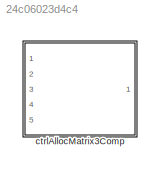
MODEL slx_24c06023d4c4
KIND library
CONFIG AbsTol = auto
CONFIG EnableMultiTasking = off
CONFIG FixedStep = auto
CONFIG MaxStep = auto
CONFIG MinStep = auto
CONFIG RelTol = 1e-3
CONFIG SampleTimeConstraint = Unconstrained
CONFIG SolverName = VariableStepAuto
CONFIG StartTime = 0.0
CONFIG StopTime = 10.0
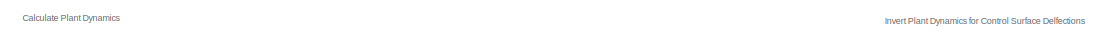
[diagram: ctrlAllocMatrix3Comp - part 1/2, top center region]
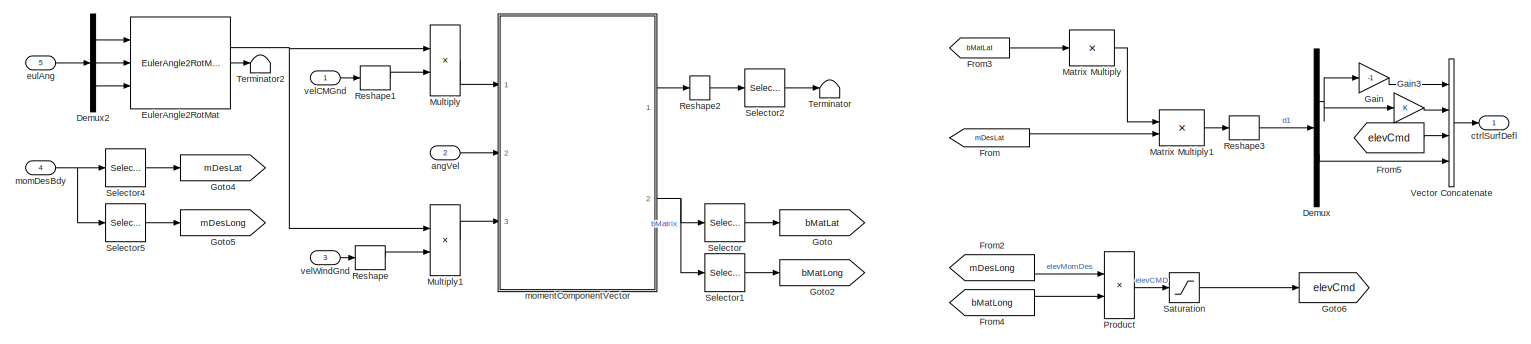
[diagram: ctrlAllocMatrix3Comp - part 2/2, most of the canvas]
BLOCK [SubSystem] ctrlAllocMatrix3Comp
  MinAlgLoopOccurrences = on
  Ports = [5, 1]
  RequestExecContextInheritance = off
BLOCK [Demux] ctrlAllocMatrix3Comp/Demux
  Outputs = 2
  Ports = [1, 2]
BLOCK [Demux] ctrlAllocMatrix3Comp/Demux2
  Outputs = 3
  Ports = [1, 3]
BLOCK [Reference] ctrlAllocMatrix3Comp/EulerAngle2RotMat  REF=eulAng2RotMat_ul/EulerAngle2RotMat
  Ports = [3, 2]
  SourceBlock = eulAng2RotMat_ul/EulerAngle2RotMat
  SourceType = SubSystem
BLOCK [From] ctrlAllocMatrix3Comp/From
  GotoTag = mDesLat
BLOCK [From] ctrlAllocMatrix3Comp/From2
  GotoTag = mDesLong
BLOCK [From] ctrlAllocMatrix3Comp/From3
  GotoTag = bMatLat
BLOCK [From] ctrlAllocMatrix3Comp/From4
  GotoTag = bMatLong
BLOCK [From] ctrlAllocMatrix3Comp/From5
  GotoTag = elevCmd
BLOCK [Gain] ctrlAllocMatrix3Comp/Gain
  Gain = -1
BLOCK [Gain] ctrlAllocMatrix3Comp/Gain3
BLOCK [Goto] ctrlAllocMatrix3Comp/Goto
  GotoTag = bMatLat
BLOCK [Goto] ctrlAllocMatrix3Comp/Goto2
  GotoTag = bMatLong
BLOCK [Goto] ctrlAllocMatrix3Comp/Goto4
  GotoTag = mDesLat
BLOCK [Goto] ctrlAllocMatrix3Comp/Goto5
  GotoTag = mDesLong
BLOCK [Goto] ctrlAllocMatrix3Comp/Goto6
  GotoTag = elevCmd
BLOCK [Product] ctrlAllocMatrix3Comp/Matrix Multiply
  Inputs = /
  Multiplication = Matrix(*)
  Ports = [1, 1]
BLOCK [Product] ctrlAllocMatrix3Comp/Matrix Multiply1
  Multiplication = Matrix(*)
  Ports = [2, 1]
BLOCK [Product] ctrlAllocMatrix3Comp/Multiply
  Multiplication = Matrix(*)
  Ports = [2, 1]
BLOCK [Product] ctrlAllocMatrix3Comp/Multiply1
  Multiplication = Matrix(*)
  Ports = [2, 1]
BLOCK [Product] ctrlAllocMatrix3Comp/Product
  Inputs = */
  Ports = [2, 1]
BLOCK [Reshape] ctrlAllocMatrix3Comp/Reshape
  OutputDimensionality = Column vector (2-D)
  Ports = [1, 1]
BLOCK [Reshape] ctrlAllocMatrix3Comp/Reshape1
  OutputDimensionality = Column vector (2-D)
  Ports = [1, 1]
BLOCK [Reshape] ctrlAllocMatrix3Comp/Reshape2
  OutputDimensionality = Column vector (2-D)
  Ports = [1, 1]
BLOCK [Reshape] ctrlAllocMatrix3Comp/Reshape3
  Ports = [1, 1]
BLOCK [Saturate] ctrlAllocMatrix3Comp/Saturation
  LowerLimit = -30
  UpperLimit = 30
BLOCK [Selector] ctrlAllocMatrix3Comp/Selector
  IndexOptions = Index vector (dialog),Index vector (dialog)
  Indices = [1 3],[1 3]
  InputPortWidth = 3
  NumberOfDimensions = 2
  OutputSizes = 1,1
  Ports = [1, 1]
BLOCK [Selector] ctrlAllocMatrix3Comp/Selector1
  IndexOptions = Index vector (dialog),Index vector (dialog)
  Indices = 2,2
  InputPortWidth = 3
  NumberOfDimensions = 2
  OutputSizes = 1,1
  Ports = [1, 1]
BLOCK [Selector] ctrlAllocMatrix3Comp/Selector2
  IndexOptions = Index vector (dialog)
  Indices = [1 3]
  InputPortWidth = 3
  OutputSizes = 1
  Ports = [1, 1]
BLOCK [Selector] ctrlAllocMatrix3Comp/Selector4
  IndexOptions = Index vector (dialog)
  Indices = [1 3]
  InputPortWidth = 3
  OutputSizes = 1
  Ports = [1, 1]
BLOCK [Selector] ctrlAllocMatrix3Comp/Selector5
  IndexOptions = Index vector (dialog)
  Indices = 2
  InputPortWidth = 3
  OutputSizes = 1
  Ports = [1, 1]
BLOCK [Terminator] ctrlAllocMatrix3Comp/Terminator
BLOCK [Terminator] ctrlAllocMatrix3Comp/Terminator2
BLOCK [Concatenate] ctrlAllocMatrix3Comp/Vector Concatenate
  NumInputs = 4
  Ports = [4, 1]
BLOCK [Inport] ctrlAllocMatrix3Comp/angVel
  Port = 2
BLOCK [Outport] ctrlAllocMatrix3Comp/ctrlSurfDefl
  VectorParamsAs1DForOutWhenUnconnected = off
BLOCK [Inport] ctrlAllocMatrix3Comp/eulAng
  Port = 5
BLOCK [Inport] ctrlAllocMatrix3Comp/momDesBdy
  Port = 4
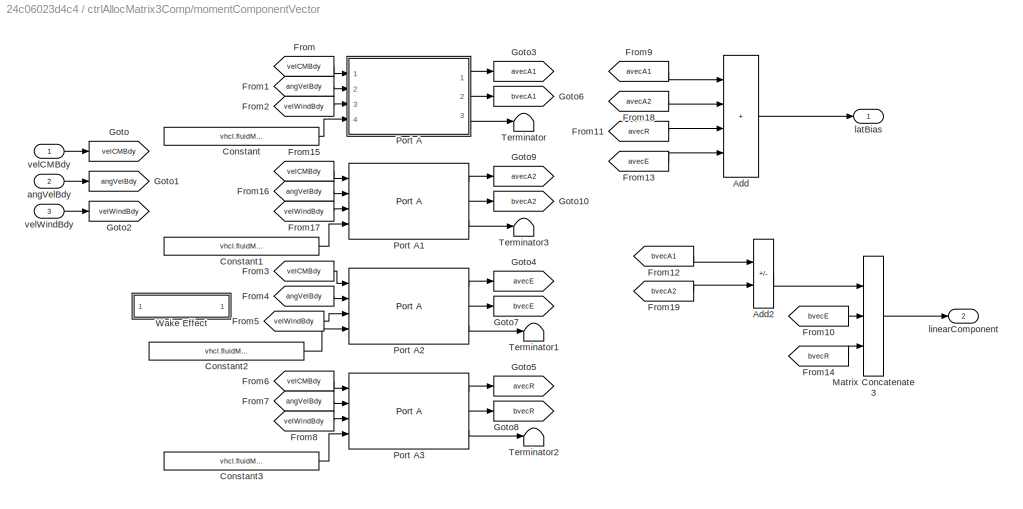
BLOCK [SubSystem] ctrlAllocMatrix3Comp/momentComponentVector
  Ports = [3, 2]
  RequestExecContextInheritance = off
BLOCK [Sum] ctrlAllocMatrix3Comp/momentComponentVector/Add
  IconShape = rectangular
  Inputs = ++++
  Ports = [4, 1]
BLOCK [Sum] ctrlAllocMatrix3Comp/momentComponentVector/Add2
  IconShape = rectangular
  Inputs = -+
  Ports = [2, 1]
BLOCK [Constant] ctrlAllocMatrix3Comp/momentComponentVector/Constant
  Value = vhcl.fluidMomentArms.Value(:,1)
BLOCK [Constant] ctrlAllocMatrix3Comp/momentComponentVector/Constant1
  Value = vhcl.fluidMomentArms.Value(:,2)
BLOCK [Constant] ctrlAllocMatrix3Comp/momentComponentVector/Constant2
  Value = vhcl.fluidMomentArms.Value(:,3)
BLOCK [Constant] ctrlAllocMatrix3Comp/momentComponentVector/Constant3
  Value = vhcl.fluidMomentArms.Value(:,4)
BLOCK [From] ctrlAllocMatrix3Comp/momentComponentVector/From
  GotoTag = velCMBdy
BLOCK [From] ctrlAllocMatrix3Comp/momentComponentVector/From1
  GotoTag = angVelBdy
BLOCK [From] ctrlAllocMatrix3Comp/momentComponentVector/From10
  GotoTag = bvecE
BLOCK [From] ctrlAllocMatrix3Comp/momentComponentVector/From11
  GotoTag = avecR
BLOCK [From] ctrlAllocMatrix3Comp/momentComponentVector/From12
  GotoTag = bvecA1
BLOCK [From] ctrlAllocMatrix3Comp/momentComponentVector/From13
  GotoTag = avecE
BLOCK [From] ctrlAllocMatrix3Comp/momentComponentVector/From14
  GotoTag = bvecR
BLOCK [From] ctrlAllocMatrix3Comp/momentComponentVector/From15
  GotoTag = velCMBdy
BLOCK [From] ctrlAllocMatrix3Comp/momentComponentVector/From16
  GotoTag = angVelBdy
BLOCK [From] ctrlAllocMatrix3Comp/momentComponentVector/From17
  GotoTag = velWindBdy
BLOCK [From] ctrlAllocMatrix3Comp/momentComponentVector/From18
  GotoTag = avecA2
BLOCK [From] ctrlAllocMatrix3Comp/momentComponentVector/From19
  GotoTag = bvecA2
BLOCK [From] ctrlAllocMatrix3Comp/momentComponentVector/From2
  GotoTag = velWindBdy
BLOCK [From] ctrlAllocMatrix3Comp/momentComponentVector/From3
  GotoTag = velCMBdy
BLOCK [From] ctrlAllocMatrix3Comp/momentComponentVector/From4
  GotoTag = angVelBdy
BLOCK [From] ctrlAllocMatrix3Comp/momentComponentVector/From5
  GotoTag = velWindBdy
BLOCK [From] ctrlAllocMatrix3Comp/momentComponentVector/From6
  GotoTag = velCMBdy
BLOCK [From] ctrlAllocMatrix3Comp/momentComponentVector/From7
  GotoTag = angVelBdy
BLOCK [From] ctrlAllocMatrix3Comp/momentComponentVector/From8
  GotoTag = velWindBdy
BLOCK [From] ctrlAllocMatrix3Comp/momentComponentVector/From9
  GotoTag = avecA1
BLOCK [Goto] ctrlAllocMatrix3Comp/momentComponentVector/Goto
  GotoTag = velCMBdy
BLOCK [Goto] ctrlAllocMatrix3Comp/momentComponentVector/Goto1
  GotoTag = angVelBdy
BLOCK [Goto] ctrlAllocMatrix3Comp/momentComponentVector/Goto10
  GotoTag = bvecA2
BLOCK [Goto] ctrlAllocMatrix3Comp/momentComponentVector/Goto2
  GotoTag = velWindBdy
BLOCK [Goto] ctrlAllocMatrix3Comp/momentComponentVector/Goto3
  GotoTag = avecA1
BLOCK [Goto] ctrlAllocMatrix3Comp/momentComponentVector/Goto4
  GotoTag = avecE
BLOCK [Goto] ctrlAllocMatrix3Comp/momentComponentVector/Goto5
  GotoTag = avecR
BLOCK [Goto] ctrlAllocMatrix3Comp/momentComponentVector/Goto6
  GotoTag = bvecA1
BLOCK [Goto] ctrlAllocMatrix3Comp/momentComponentVector/Goto7
  GotoTag = bvecE
BLOCK [Goto] ctrlAllocMatrix3Comp/momentComponentVector/Goto8
  GotoTag = bvecR
BLOCK [Goto] ctrlAllocMatrix3Comp/momentComponentVector/Goto9
  GotoTag = avecA2
BLOCK [Concatenate] ctrlAllocMatrix3Comp/momentComponentVector/Matrix Concatenate3
  ConcatenateDimension = 2
  Mode = Multidimensional array
  NumInputs = 3
  Ports = [3, 1]
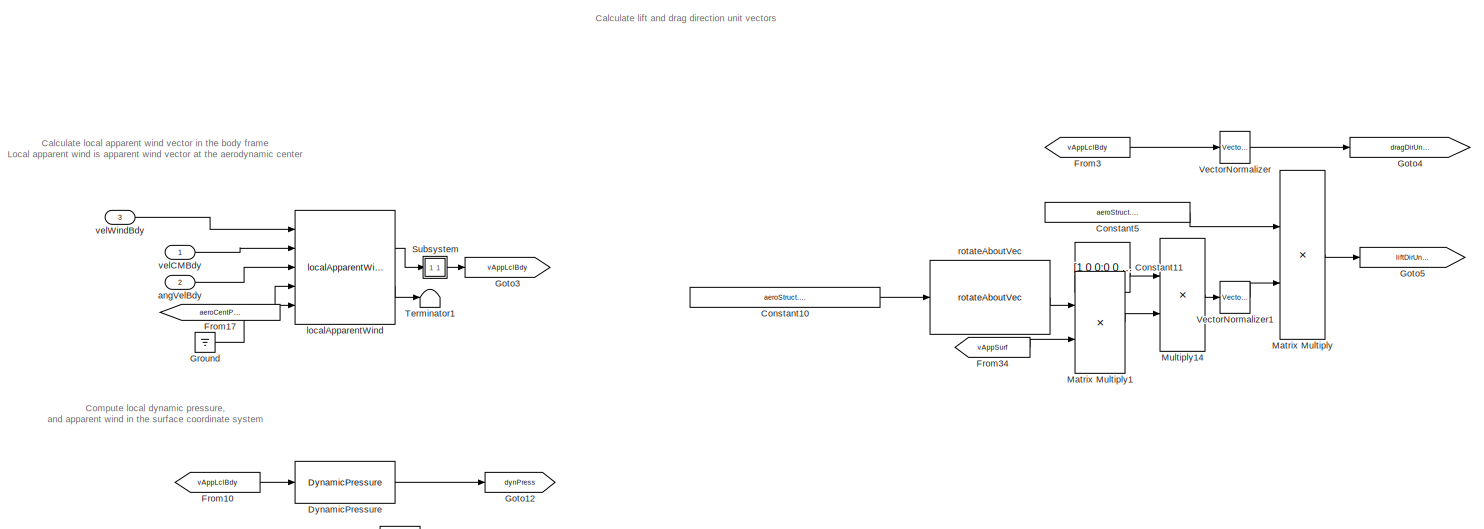
[diagram: ctrlAllocMatrix3Comp/momentComponentVector/Port A - part 1/4, top center region]
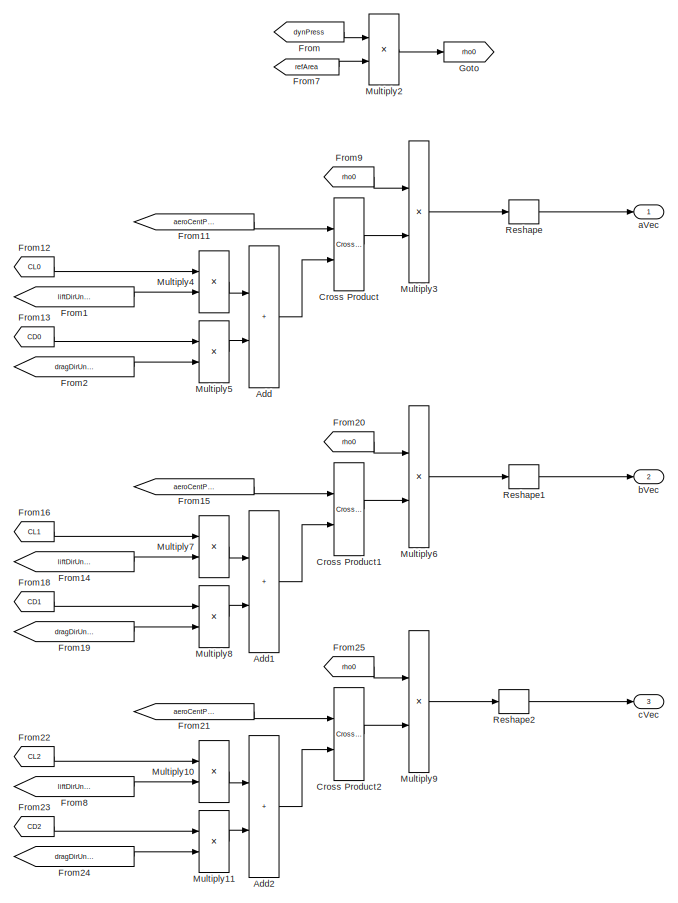
[diagram: ctrlAllocMatrix3Comp/momentComponentVector/Port A - part 2/4, middle right region]
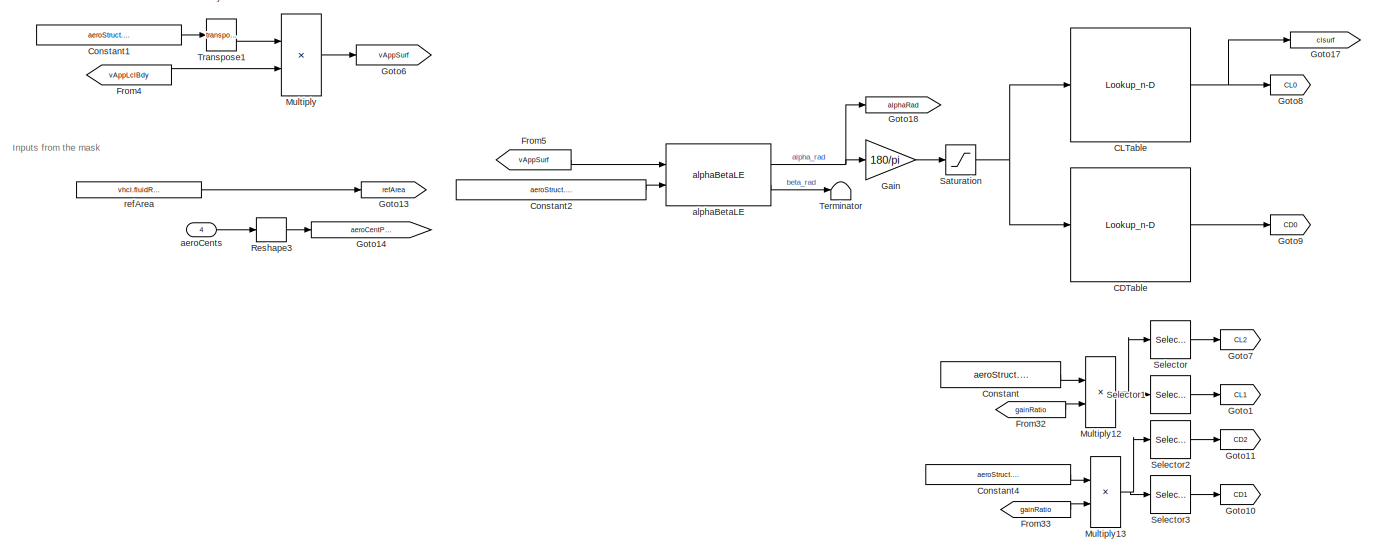
[diagram: ctrlAllocMatrix3Comp/momentComponentVector/Port A - part 3/4, central region]
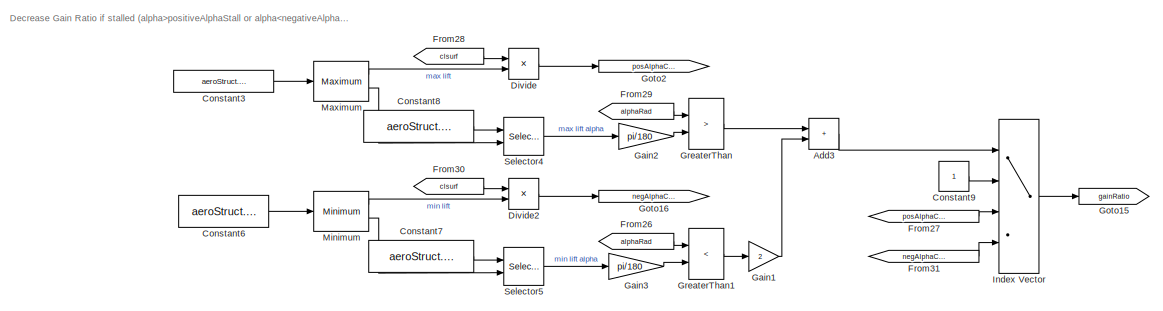
[diagram: ctrlAllocMatrix3Comp/momentComponentVector/Port A - part 4/4, bottom right region]
BLOCK [SubSystem] ctrlAllocMatrix3Comp/momentComponentVector/Port A
  Ports = [4, 3]
  RequestExecContextInheritance = off
BLOCK [Sum] ctrlAllocMatrix3Comp/momentComponentVector/Port A/Add
  IconShape = rectangular
  Ports = [2, 1]
BLOCK [Sum] ctrlAllocMatrix3Comp/momentComponentVector/Port A/Add1
  IconShape = rectangular
  Ports = [2, 1]
BLOCK [Sum] ctrlAllocMatrix3Comp/momentComponentVector/Port A/Add2
  IconShape = rectangular
  Ports = [2, 1]
BLOCK [Sum] ctrlAllocMatrix3Comp/momentComponentVector/Port A/Add3
  IconShape = rectangular
  Ports = [2, 1]
BLOCK [Lookup_n-D] ctrlAllocMatrix3Comp/momentComponentVector/Port A/CDTable
  BreakpointsForDimension1 = aeroStruct.alpha.Value
  ExtrapMethod = Clip
  InputPortMap = u0
  InternalRulePriority = Speed
  LookupTableObject = CLTable
  NumberOfTableDimensions = 1
  Ports = [1, 1]
  RndMeth = Simplest
  Table = aeroStruct.CD.Value
  UseLastTableValue = on
BLOCK [Lookup_n-D] ctrlAllocMatrix3Comp/momentComponentVector/Port A/CLTable
  BreakpointsForDimension1 = aeroStruct.alpha.Value
  ExtrapMethod = Clip
  InputPortMap = u0
  InternalRulePriority = Speed
  LookupTableObject = CLTable
  NumberOfTableDimensions = 1
  Ports = [1, 1]
  RndMeth = Simplest
  Table = aeroStruct.CL.Value
  UseLastTableValue = on
BLOCK [Constant] ctrlAllocMatrix3Comp/momentComponentVector/Port A/Constant
  NameLocation = top
  Value = aeroStruct.gainCL.Value
BLOCK [Constant] ctrlAllocMatrix3Comp/momentComponentVector/Port A/Constant1
  Value = aeroStruct.RSurf2Bdy.Value
BLOCK [Constant] ctrlAllocMatrix3Comp/momentComponentVector/Port A/Constant10
  Value = aeroStruct.incAlphaUnitVecSurf.Value
BLOCK [Constant] ctrlAllocMatrix3Comp/momentComponentVector/Port A/Constant11
  Value = [1 0 0;0 0 0;0 0 1]
BLOCK [Constant] ctrlAllocMatrix3Comp/momentComponentVector/Port A/Constant2
  Value = aeroStruct.incAlphaUnitVecSurf.Value
BLOCK [Constant] ctrlAllocMatrix3Comp/momentComponentVector/Port A/Constant3
  Value = aeroStruct.CL.Value
BLOCK [Constant] ctrlAllocMatrix3Comp/momentComponentVector/Port A/Constant4
  NameLocation = top
  Value = aeroStruct.gainCD.Value
BLOCK [Constant] ctrlAllocMatrix3Comp/momentComponentVector/Port A/Constant5
  Value = aeroStruct.RSurf2Bdy.Value
BLOCK [Constant] ctrlAllocMatrix3Comp/momentComponentVector/Port A/Constant6
  Value = aeroStruct.CL.Value
BLOCK [Constant] ctrlAllocMatrix3Comp/momentComponentVector/Port A/Constant7
  Value = aeroStruct.alpha.Value
BLOCK [Constant] ctrlAllocMatrix3Comp/momentComponentVector/Port A/Constant8
  Value = aeroStruct.alpha.Value
BLOCK [Constant] ctrlAllocMatrix3Comp/momentComponentVector/Port A/Constant9
BLOCK [Reference] ctrlAllocMatrix3Comp/momentComponentVector/Port A/Cross Product  REF=vrlib/Utilities/Cross Product
  Ports = [2, 1]
  SourceBlock = vrlib/Utilities/Cross Product
  SourceProductBaseCode = SL
  SourceType = Cross Product
BLOCK [Reference] ctrlAllocMatrix3Comp/momentComponentVector/Port A/Cross Product1  REF=vrlib/Utilities/Cross Product
  Ports = [2, 1]
  SourceBlock = vrlib/Utilities/Cross Product
  SourceProductBaseCode = SL
  SourceType = Cross Product
BLOCK [Reference] ctrlAllocMatrix3Comp/momentComponentVector/Port A/Cross Product2  REF=vrlib/Utilities/Cross Product
  Ports = [2, 1]
  SourceBlock = vrlib/Utilities/Cross Product
  SourceProductBaseCode = SL
  SourceType = Cross Product
BLOCK [Product] ctrlAllocMatrix3Comp/momentComponentVector/Port A/Divide
  Inputs = */
  Ports = [2, 1]
BLOCK [Product] ctrlAllocMatrix3Comp/momentComponentVector/Port A/Divide2
  Inputs = */
  Ports = [2, 1]
BLOCK [Reference] ctrlAllocMatrix3Comp/momentComponentVector/Port A/DynamicPressure  REF=dynamicPressure_ul/DynamicPressure
  Ports = [1, 1]
  SourceBlock = dynamicPressure_ul/DynamicPressure
BLOCK [From] ctrlAllocMatrix3Comp/momentComponentVector/Port A/From
  GotoTag = dynPress
BLOCK [From] ctrlAllocMatrix3Comp/momentComponentVector/Port A/From1
  GotoTag = liftDirUnitVecBdy
BLOCK [From] ctrlAllocMatrix3Comp/momentComponentVector/Port A/From10
  GotoTag = vAppLclBdy
BLOCK [From] ctrlAllocMatrix3Comp/momentComponentVector/Port A/From11
  GotoTag = aeroCentPosVecBdy
BLOCK [From] ctrlAllocMatrix3Comp/momentComponentVector/Port A/From12
  GotoTag = CL0
BLOCK [From] ctrlAllocMatrix3Comp/momentComponentVector/Port A/From13
  GotoTag = CD0
BLOCK [From] ctrlAllocMatrix3Comp/momentComponentVector/Port A/From14
  GotoTag = liftDirUnitVecBdy
BLOCK [From] ctrlAllocMatrix3Comp/momentComponentVector/Port A/From15
  GotoTag = aeroCentPosVecBdy
BLOCK [From] ctrlAllocMatrix3Comp/momentComponentVector/Port A/From16
  GotoTag = CL1
BLOCK [From] ctrlAllocMatrix3Comp/momentComponentVector/Port A/From17
  GotoTag = aeroCentPosVecBdy
BLOCK [From] ctrlAllocMatrix3Comp/momentComponentVector/Port A/From18
  GotoTag = CD1
BLOCK [From] ctrlAllocMatrix3Comp/momentComponentVector/Port A/From19
  GotoTag = dragDirUnitVecBdy
BLOCK [From] ctrlAllocMatrix3Comp/momentComponentVector/Port A/From2
  GotoTag = dragDirUnitVecBdy
BLOCK [From] ctrlAllocMatrix3Comp/momentComponentVector/Port A/From20
  GotoTag = rho0
BLOCK [From] ctrlAllocMatrix3Comp/momentComponentVector/Port A/From21
  GotoTag = aeroCentPosVecBdy
BLOCK [From] ctrlAllocMatrix3Comp/momentComponentVector/Port A/From22
  GotoTag = CL2
BLOCK [From] ctrlAllocMatrix3Comp/momentComponentVector/Port A/From23
  GotoTag = CD2
BLOCK [From] ctrlAllocMatrix3Comp/momentComponentVector/Port A/From24
  GotoTag = dragDirUnitVecBdy
BLOCK [From] ctrlAllocMatrix3Comp/momentComponentVector/Port A/From25
  GotoTag = rho0
BLOCK [From] ctrlAllocMatrix3Comp/momentComponentVector/Port A/From26
  GotoTag = alphaRad
BLOCK [From] ctrlAllocMatrix3Comp/momentComponentVector/Port A/From27
  GotoTag = posAlphaCLRatio
BLOCK [From] ctrlAllocMatrix3Comp/momentComponentVector/Port A/From28
  GotoTag = clsurf
BLOCK [From] ctrlAllocMatrix3Comp/momentComponentVector/Port A/From29
  GotoTag = alphaRad
BLOCK [From] ctrlAllocMatrix3Comp/momentComponentVector/Port A/From3
  GotoTag = vAppLclBdy
BLOCK [From] ctrlAllocMatrix3Comp/momentComponentVector/Port A/From30
  GotoTag = clsurf
BLOCK [From] ctrlAllocMatrix3Comp/momentComponentVector/Port A/From31
  GotoTag = negAlphaCLRatio
BLOCK [From] ctrlAllocMatrix3Comp/momentComponentVector/Port A/From32
  GotoTag = gainRatio
BLOCK [From] ctrlAllocMatrix3Comp/momentComponentVector/Port A/From33
  GotoTag = gainRatio
BLOCK [From] ctrlAllocMatrix3Comp/momentComponentVector/Port A/From34
  GotoTag = vAppSurf
BLOCK [From] ctrlAllocMatrix3Comp/momentComponentVector/Port A/From4
  GotoTag = vAppLclBdy
BLOCK [From] ctrlAllocMatrix3Comp/momentComponentVector/Port A/From5
  GotoTag = vAppSurf
BLOCK [From] ctrlAllocMatrix3Comp/momentComponentVector/Port A/From7
  GotoTag = refArea
BLOCK [From] ctrlAllocMatrix3Comp/momentComponentVector/Port A/From8
  GotoTag = liftDirUnitVecBdy
BLOCK [From] ctrlAllocMatrix3Comp/momentComponentVector/Port A/From9
  GotoTag = rho0
BLOCK [Gain] ctrlAllocMatrix3Comp/momentComponentVector/Port A/Gain
  Gain = 180/pi
BLOCK [Gain] ctrlAllocMatrix3Comp/momentComponentVector/Port A/Gain1
  Gain = 2
BLOCK [Gain] ctrlAllocMatrix3Comp/momentComponentVector/Port A/Gain2
  Gain = pi/180
BLOCK [Gain] ctrlAllocMatrix3Comp/momentComponentVector/Port A/Gain3
  Gain = pi/180
BLOCK [Goto] ctrlAllocMatrix3Comp/momentComponentVector/Port A/Goto
  GotoTag = rho0
BLOCK [Goto] ctrlAllocMatrix3Comp/momentComponentVector/Port A/Goto1
  GotoTag = CL1
BLOCK [Goto] ctrlAllocMatrix3Comp/momentComponentVector/Port A/Goto10
  GotoTag = CD1
BLOCK [Goto] ctrlAllocMatrix3Comp/momentComponentVector/Port A/Goto11
  GotoTag = CD2
BLOCK [Goto] ctrlAllocMatrix3Comp/momentComponentVector/Port A/Goto12
  GotoTag = dynPress
BLOCK [Goto] ctrlAllocMatrix3Comp/momentComponentVector/Port A/Goto13
  GotoTag = refArea
BLOCK [Goto] ctrlAllocMatrix3Comp/momentComponentVector/Port A/Goto14
  GotoTag = aeroCentPosVecBdy
BLOCK [Goto] ctrlAllocMatrix3Comp/momentComponentVector/Port A/Goto15
  GotoTag = gainRatio
BLOCK [Goto] ctrlAllocMatrix3Comp/momentComponentVector/Port A/Goto16
  GotoTag = negAlphaCLRatio
BLOCK [Goto] ctrlAllocMatrix3Comp/momentComponentVector/Port A/Goto17
  GotoTag = clsurf
BLOCK [Goto] ctrlAllocMatrix3Comp/momentComponentVector/Port A/Goto18
  GotoTag = alphaRad
BLOCK [Goto] ctrlAllocMatrix3Comp/momentComponentVector/Port A/Goto2
  GotoTag = posAlphaCLRatio
BLOCK [Goto] ctrlAllocMatrix3Comp/momentComponentVector/Port A/Goto3
  GotoTag = vAppLclBdy
BLOCK [Goto] ctrlAllocMatrix3Comp/momentComponentVector/Port A/Goto4
  GotoTag = dragDirUnitVecBdy
BLOCK [Goto] ctrlAllocMatrix3Comp/momentComponentVector/Port A/Goto5
  GotoTag = liftDirUnitVecBdy
BLOCK [Goto] ctrlAllocMatrix3Comp/momentComponentVector/Port A/Goto6
  GotoTag = vAppSurf
BLOCK [Goto] ctrlAllocMatrix3Comp/momentComponentVector/Port A/Goto7
  GotoTag = CL2
BLOCK [Goto] ctrlAllocMatrix3Comp/momentComponentVector/Port A/Goto8
  GotoTag = CL0
BLOCK [Goto] ctrlAllocMatrix3Comp/momentComponentVector/Port A/Goto9
  GotoTag = CD0
BLOCK [RelationalOperator] ctrlAllocMatrix3Comp/momentComponentVector/Port A/GreaterThan
  InputSameDT = off
  Operator = >
  OutDataTypeStr = boolean
  Ports = [2, 1]
  RndMeth = Simplest
BLOCK [RelationalOperator] ctrlAllocMatrix3Comp/momentComponentVector/Port A/GreaterThan1
  InputSameDT = off
  Operator = <
  OutDataTypeStr = boolean
  Ports = [2, 1]
  RndMeth = Simplest
BLOCK [Ground] ctrlAllocMatrix3Comp/momentComponentVector/Port A/Ground
BLOCK [MultiPortSwitch] ctrlAllocMatrix3Comp/momentComponentVector/Port A/Index Vector
  DataPortOrder = Zero-based contiguous
  InputSameDT = off
  Ports = [4, 1]
  SaturateOnIntegerOverflow = off
  zeroidx = on
BLOCK [Product] ctrlAllocMatrix3Comp/momentComponentVector/Port A/Matrix Multiply
  Multiplication = Matrix(*)
  Ports = [2, 1]
BLOCK [Product] ctrlAllocMatrix3Comp/momentComponentVector/Port A/Matrix Multiply1
  Multiplication = Matrix(*)
  Ports = [2, 1]
BLOCK [Reference] ctrlAllocMatrix3Comp/momentComponentVector/Port A/Maximum  REF=dspstat3/Maximum
  Ports = [1, 2]
  SourceBlock = dspstat3/Maximum
  SourceProductBaseCode = DS
  SourceType = Maximum
  UserDataPersistent = on
BLOCK [Reference] ctrlAllocMatrix3Comp/momentComponentVector/Port A/Minimum  REF=dspstat3/Minimum
  Ports = [1, 2]
  SourceBlock = dspstat3/Minimum
  SourceProductBaseCode = DS
  SourceType = Minimum
  UserDataPersistent = on
BLOCK [Product] ctrlAllocMatrix3Comp/momentComponentVector/Port A/Multiply
  Multiplication = Matrix(*)
  Ports = [2, 1]
BLOCK [Product] ctrlAllocMatrix3Comp/momentComponentVector/Port A/Multiply10
  Ports = [2, 1]
BLOCK [Product] ctrlAllocMatrix3Comp/momentComponentVector/Port A/Multiply11
  Ports = [2, 1]
BLOCK [Product] ctrlAllocMatrix3Comp/momentComponentVector/Port A/Multiply12
  Ports = [2, 1]
BLOCK [Product] ctrlAllocMatrix3Comp/momentComponentVector/Port A/Multiply13
  Ports = [2, 1]
BLOCK [Product] ctrlAllocMatrix3Comp/momentComponentVector/Port A/Multiply14
  Multiplication = Matrix(*)
  Ports = [2, 1]
BLOCK [Product] ctrlAllocMatrix3Comp/momentComponentVector/Port A/Multiply2
  Ports = [2, 1]
BLOCK [Product] ctrlAllocMatrix3Comp/momentComponentVector/Port A/Multiply3
  Ports = [2, 1]
BLOCK [Product] ctrlAllocMatrix3Comp/momentComponentVector/Port A/Multiply4
  Ports = [2, 1]
BLOCK [Product] ctrlAllocMatrix3Comp/momentComponentVector/Port A/Multiply5
  Ports = [2, 1]
BLOCK [Product] ctrlAllocMatrix3Comp/momentComponentVector/Port A/Multiply6
  Ports = [2, 1]
BLOCK [Product] ctrlAllocMatrix3Comp/momentComponentVector/Port A/Multiply7
  Ports = [2, 1]
BLOCK [Product] ctrlAllocMatrix3Comp/momentComponentVector/Port A/Multiply8
  Ports = [2, 1]
BLOCK [Product] ctrlAllocMatrix3Comp/momentComponentVector/Port A/Multiply9
  Ports = [2, 1]
BLOCK [Reshape] ctrlAllocMatrix3Comp/momentComponentVector/Port A/Reshape
  OutputDimensionality = Column vector (2-D)
  Ports = [1, 1]
BLOCK [Reshape] ctrlAllocMatrix3Comp/momentComponentVector/Port A/Reshape1
  OutputDimensionality = Column vector (2-D)
  Ports = [1, 1]
BLOCK [Reshape] ctrlAllocMatrix3Comp/momentComponentVector/Port A/Reshape2
  OutputDimensionality = Column vector (2-D)
  Ports = [1, 1]
BLOCK [Reshape] ctrlAllocMatrix3Comp/momentComponentVector/Port A/Reshape3
  OutputDimensionality = Column vector (2-D)
  Ports = [1, 1]
BLOCK [Saturate] ctrlAllocMatrix3Comp/momentComponentVector/Port A/Saturation
  LowerLimit = -90
  UpperLimit = 90
BLOCK [Selector] ctrlAllocMatrix3Comp/momentComponentVector/Port A/Selector
  IndexOptions = Index vector (dialog)
  Indices = 1
  InputPortWidth = 3
  OutputSizes = 1
  Ports = [1, 1]
BLOCK [Selector] ctrlAllocMatrix3Comp/momentComponentVector/Port A/Selector1
  IndexOptions = Index vector (dialog)
  Indices = 2
  InputPortWidth = 3
  OutputSizes = 1
  Ports = [1, 1]
BLOCK [Selector] ctrlAllocMatrix3Comp/momentComponentVector/Port A/Selector2
  IndexOptions = Index vector (dialog)
  Indices = 1
  InputPortWidth = 3
  OutputSizes = 1
  Ports = [1, 1]
BLOCK [Selector] ctrlAllocMatrix3Comp/momentComponentVector/Port A/Selector3
  IndexOptions = Index vector (dialog)
  Indices = 2
  InputPortWidth = 3
  OutputSizes = 1
  Ports = [1, 1]
BLOCK [Selector] ctrlAllocMatrix3Comp/momentComponentVector/Port A/Selector4
  IndexOptions = Index vector (port)
  Indices = [1 3]
  InputPortWidth = length(vhcl.portWing.alpha.Value)
  OutputSizes = 1
  Ports = [2, 1]
BLOCK [Selector] ctrlAllocMatrix3Comp/momentComponentVector/Port A/Selector5
  IndexOptions = Index vector (port)
  Indices = [1 3]
  InputPortWidth = length(vhcl.portWing.alpha.Value)
  OutputSizes = 1
  Ports = [2, 1]
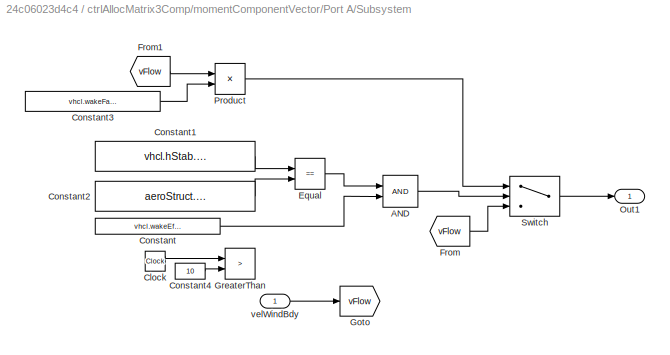
BLOCK [SubSystem] ctrlAllocMatrix3Comp/momentComponentVector/Port A/Subsystem
  Ports = [1, 1]
  RequestExecContextInheritance = off
BLOCK [Logic] ctrlAllocMatrix3Comp/momentComponentVector/Port A/Subsystem/AND
  AllPortsSameDT = off
  IconShape = distinctive
  OutDataTypeStr = boolean
  Ports = [2, 1]
BLOCK [Clock] ctrlAllocMatrix3Comp/momentComponentVector/Port A/Subsystem/Clock
  Commented = on
BLOCK [Constant] ctrlAllocMatrix3Comp/momentComponentVector/Port A/Subsystem/Constant
  Value = vhcl.wakeEffect.Value
BLOCK [Constant] ctrlAllocMatrix3Comp/momentComponentVector/Port A/Subsystem/Constant1
  Value = vhcl.hStab.planformArea.Value
BLOCK [Constant] ctrlAllocMatrix3Comp/momentComponentVector/Port A/Subsystem/Constant2
  Value = aeroStruct.planformArea.Value
BLOCK [Constant] ctrlAllocMatrix3Comp/momentComponentVector/Port A/Subsystem/Constant3
  Value = vhcl.wakeFactor.Value
BLOCK [Constant] ctrlAllocMatrix3Comp/momentComponentVector/Port A/Subsystem/Constant4
  Commented = on
  SampleTime = -1
  Value = 10
  VectorParams1D = off
BLOCK [RelationalOperator] ctrlAllocMatrix3Comp/momentComponentVector/Port A/Subsystem/Equal
  InputSameDT = off
  Operator = ==
  OutDataTypeStr = boolean
  Ports = [2, 1]
  RndMeth = Simplest
BLOCK [From] ctrlAllocMatrix3Comp/momentComponentVector/Port A/Subsystem/From
  GotoTag = vFlow
BLOCK [From] ctrlAllocMatrix3Comp/momentComponentVector/Port A/Subsystem/From1
  GotoTag = vFlow
BLOCK [Goto] ctrlAllocMatrix3Comp/momentComponentVector/Port A/Subsystem/Goto
  GotoTag = vFlow
BLOCK [RelationalOperator] ctrlAllocMatrix3Comp/momentComponentVector/Port A/Subsystem/GreaterThan
  Commented = on
  InputSameDT = off
  Operator = >
  OutDataTypeStr = boolean
  Ports = [2, 1]
  RndMeth = Simplest
BLOCK [Outport] ctrlAllocMatrix3Comp/momentComponentVector/Port A/Subsystem/Out1
BLOCK [Product] ctrlAllocMatrix3Comp/momentComponentVector/Port A/Subsystem/Product
  Ports = [2, 1]
BLOCK [Switch] ctrlAllocMatrix3Comp/momentComponentVector/Port A/Subsystem/Switch
  Criteria = u2 > Threshold
  InputSameDT = off
  SaturateOnIntegerOverflow = off
BLOCK [Inport] ctrlAllocMatrix3Comp/momentComponentVector/Port A/Subsystem/velWindBdy
BLOCK [Terminator] ctrlAllocMatrix3Comp/momentComponentVector/Port A/Terminator
BLOCK [Terminator] ctrlAllocMatrix3Comp/momentComponentVector/Port A/Terminator1
BLOCK [Math] ctrlAllocMatrix3Comp/momentComponentVector/Port A/Transpose1
  Operator = transpose
  Ports = [1, 1]
  SignedPower = on
BLOCK [Reference] ctrlAllocMatrix3Comp/momentComponentVector/Port A/VectorNormalizer   REF=vectorNormalizer_ul/VectorNormalizer

  Ports = [1, 1]
  SourceBlock = vectorNormalizer_ul/VectorNormalizer
  SourceType = SubSystem
BLOCK [Reference] ctrlAllocMatrix3Comp/momentComponentVector/Port A/VectorNormalizer1  REF=vectorNormalizer_ul/VectorNormalizer

  Ports = [1, 1]
  SourceBlock = vectorNormalizer_ul/VectorNormalizer
  SourceType = SubSystem
BLOCK [Outport] ctrlAllocMatrix3Comp/momentComponentVector/Port A/aVec
  PortDimensions = [3 1]
  VectorParamsAs1DForOutWhenUnconnected = off
BLOCK [Inport] ctrlAllocMatrix3Comp/momentComponentVector/Port A/aeroCents
  Port = 4
BLOCK [Reference] ctrlAllocMatrix3Comp/momentComponentVector/Port A/alphaBetaLE  REF=alphaBetaLE_ul/alphaBetaLE
  Ports = [2, 2]
  SourceBlock = alphaBetaLE_ul/alphaBetaLE
  SourceType = SubSystem
BLOCK [Inport] ctrlAllocMatrix3Comp/momentComponentVector/Port A/angVelBdy
  Port = 2
BLOCK [Outport] ctrlAllocMatrix3Comp/momentComponentVector/Port A/bVec
  Port = 2
  PortDimensions = [3 1]
  VectorParamsAs1DForOutWhenUnconnected = off
BLOCK [Outport] ctrlAllocMatrix3Comp/momentComponentVector/Port A/cVec
  Port = 3
  PortDimensions = [3 1]
  VectorParamsAs1DForOutWhenUnconnected = off
BLOCK [Reference] ctrlAllocMatrix3Comp/momentComponentVector/Port A/localApparentWind  REF=localApparentWind_ul/localApparentWind
  Ports = [5, 2]
  SourceBlock = localApparentWind_ul/localApparentWind
  SourceType = SubSystem
BLOCK [Constant] ctrlAllocMatrix3Comp/momentComponentVector/Port A/refArea
  Value = vhcl.fluidRefArea.Value
BLOCK [Reference] ctrlAllocMatrix3Comp/momentComponentVector/Port A/rotateAboutVec  REF=rotateAboutVec/rotateAboutVec
  Ports = [1, 1]
  SourceBlock = rotateAboutVec/rotateAboutVec
BLOCK [Inport] ctrlAllocMatrix3Comp/momentComponentVector/Port A/velCMBdy
BLOCK [Inport] ctrlAllocMatrix3Comp/momentComponentVector/Port A/velWindBdy
  Port = 3
BLOCK [Reference] ctrlAllocMatrix3Comp/momentComponentVector/Port A1  REF=$bdroot/ctrlAllocMatrix3Comp/momentComponentVector/Port A
  Ports = [4, 3]
  SourceBlock = $bdroot/ctrlAllocMatrix3Comp/momentComponentVector/Port A
BLOCK [Reference] ctrlAllocMatrix3Comp/momentComponentVector/Port A2  REF=$bdroot/ctrlAllocMatrix3Comp/momentComponentVector/Port A
  Ports = [4, 3]
  SourceBlock = $bdroot/ctrlAllocMatrix3Comp/momentComponentVector/Port A
BLOCK [Reference] ctrlAllocMatrix3Comp/momentComponentVector/Port A3  REF=$bdroot/ctrlAllocMatrix3Comp/momentComponentVector/Port A
  Ports = [4, 3]
  SourceBlock = $bdroot/ctrlAllocMatrix3Comp/momentComponentVector/Port A
BLOCK [Terminator] ctrlAllocMatrix3Comp/momentComponentVector/Terminator
BLOCK [Terminator] ctrlAllocMatrix3Comp/momentComponentVector/Terminator1
BLOCK [Terminator] ctrlAllocMatrix3Comp/momentComponentVector/Terminator2
BLOCK [Terminator] ctrlAllocMatrix3Comp/momentComponentVector/Terminator3
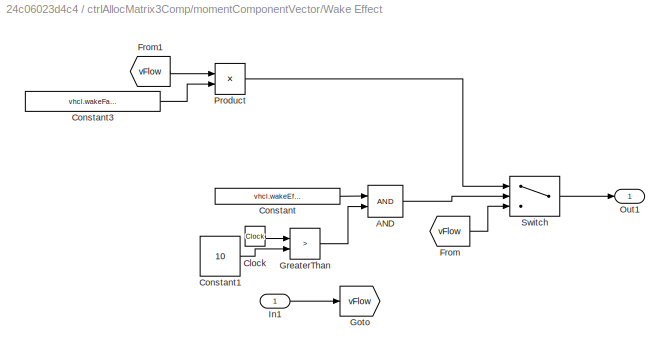
BLOCK [SubSystem] ctrlAllocMatrix3Comp/momentComponentVector/Wake Effect
  Commented = on
  Ports = [1, 1]
  RequestExecContextInheritance = off
BLOCK [Logic] ctrlAllocMatrix3Comp/momentComponentVector/Wake Effect/AND
  AllPortsSameDT = off
  IconShape = distinctive
  OutDataTypeStr = boolean
  Ports = [2, 1]
BLOCK [Clock] ctrlAllocMatrix3Comp/momentComponentVector/Wake Effect/Clock
BLOCK [Constant] ctrlAllocMatrix3Comp/momentComponentVector/Wake Effect/Constant
  Value = vhcl.wakeEffect.Value
BLOCK [Constant] ctrlAllocMatrix3Comp/momentComponentVector/Wake Effect/Constant1
  SampleTime = -1
  Value = 10
  VectorParams1D = off
BLOCK [Constant] ctrlAllocMatrix3Comp/momentComponentVector/Wake Effect/Constant3
  Value = vhcl.wakeFactor.Value
BLOCK [From] ctrlAllocMatrix3Comp/momentComponentVector/Wake Effect/From
  GotoTag = vFlow
BLOCK [From] ctrlAllocMatrix3Comp/momentComponentVector/Wake Effect/From1
  GotoTag = vFlow
BLOCK [Goto] ctrlAllocMatrix3Comp/momentComponentVector/Wake Effect/Goto
  GotoTag = vFlow
BLOCK [RelationalOperator] ctrlAllocMatrix3Comp/momentComponentVector/Wake Effect/GreaterThan
  InputSameDT = off
  Operator = >
  OutDataTypeStr = boolean
  Ports = [2, 1]
  RndMeth = Simplest
BLOCK [Inport] ctrlAllocMatrix3Comp/momentComponentVector/Wake Effect/In1
BLOCK [Outport] ctrlAllocMatrix3Comp/momentComponentVector/Wake Effect/Out1
BLOCK [Product] ctrlAllocMatrix3Comp/momentComponentVector/Wake Effect/Product
  Ports = [2, 1]
BLOCK [Switch] ctrlAllocMatrix3Comp/momentComponentVector/Wake Effect/Switch
  Criteria = u2 > Threshold
  InputSameDT = off
  SaturateOnIntegerOverflow = off
BLOCK [Inport] ctrlAllocMatrix3Comp/momentComponentVector/angVelBdy
  Port = 2
BLOCK [Outport] ctrlAllocMatrix3Comp/momentComponentVector/latBias
BLOCK [Outport] ctrlAllocMatrix3Comp/momentComponentVector/linearComponent
  Port = 2
BLOCK [Inport] ctrlAllocMatrix3Comp/momentComponentVector/velCMBdy
BLOCK [Inport] ctrlAllocMatrix3Comp/momentComponentVector/velWindBdy
  Port = 3
BLOCK [Inport] ctrlAllocMatrix3Comp/velCMGnd
BLOCK [Inport] ctrlAllocMatrix3Comp/velWindGnd
  Port = 3
ANNOTATION ctrlAllocMatrix3Comp: Calculate Plant Dynamics
ANNOTATION ctrlAllocMatrix3Comp: Invert Plant Dynamics for Control Surface Delfections
ANNOTATION ctrlAllocMatrix3Comp/momentComponentVector/Port A: Calculate lift and drag direction unit vectors
ANNOTATION ctrlAllocMatrix3Comp/momentComponentVector/Port A: Calculate local apparent wind vector in the body frame Local apparent wind is apparent wind vector at the aerodynamic center
ANNOTATION ctrlAllocMatrix3Comp/momentComponentVector/Port A: Compute local dynamic pressure, and apparent wind in the surface coordinate system
ANNOTATION ctrlAllocMatrix3Comp/momentComponentVector/Port A: Decrease Gain Ratio if stalled (alpha>positiveAlphaStall or alpha<negativeAlphaStall)
ANNOTATION ctrlAllocMatrix3Comp/momentComponentVector/Port A: Inputs from the mask
LINE ctrlAllocMatrix3Comp/Demux2:1 -> ctrlAllocMatrix3Comp/EulerAngle2RotMat:1
LINE ctrlAllocMatrix3Comp/Demux2:2 -> ctrlAllocMatrix3Comp/EulerAngle2RotMat:2
LINE ctrlAllocMatrix3Comp/Demux2:3 -> ctrlAllocMatrix3Comp/EulerAngle2RotMat:3
NET ctrlAllocMatrix3Comp/Demux:1 -> ctrlAllocMatrix3Comp/Gain3:1, ctrlAllocMatrix3Comp/Gain:1
LINE ctrlAllocMatrix3Comp/Demux:2 -> ctrlAllocMatrix3Comp/Vector Concatenate:4
NET ctrlAllocMatrix3Comp/EulerAngle2RotMat:1 -> ctrlAllocMatrix3Comp/Multiply1:1, ctrlAllocMatrix3Comp/Multiply:1
LINE ctrlAllocMatrix3Comp/EulerAngle2RotMat:2 -> ctrlAllocMatrix3Comp/Terminator2:1
LINE ctrlAllocMatrix3Comp/From2:1 -> ctrlAllocMatrix3Comp/Product:1
LINE ctrlAllocMatrix3Comp/From3:1 -> ctrlAllocMatrix3Comp/Matrix Multiply:1
LINE ctrlAllocMatrix3Comp/From4:1 -> ctrlAllocMatrix3Comp/Product:2
LINE ctrlAllocMatrix3Comp/From5:1 -> ctrlAllocMatrix3Comp/Vector Concatenate:3
LINE ctrlAllocMatrix3Comp/From:1 -> ctrlAllocMatrix3Comp/Matrix Multiply1:2
LINE ctrlAllocMatrix3Comp/Gain3:1 -> ctrlAllocMatrix3Comp/Vector Concatenate:2
LINE ctrlAllocMatrix3Comp/Gain:1 -> ctrlAllocMatrix3Comp/Vector Concatenate:1
LINE ctrlAllocMatrix3Comp/Matrix Multiply1:1 -> ctrlAllocMatrix3Comp/Reshape3:1
LINE ctrlAllocMatrix3Comp/Matrix Multiply:1 -> ctrlAllocMatrix3Comp/Matrix Multiply1:1
LINE ctrlAllocMatrix3Comp/Multiply1:1 -> ctrlAllocMatrix3Comp/momentComponentVector:3
LINE ctrlAllocMatrix3Comp/Multiply:1 -> ctrlAllocMatrix3Comp/momentComponentVector:1
LINE ctrlAllocMatrix3Comp/Product:1 -> ctrlAllocMatrix3Comp/Saturation:1
LINE ctrlAllocMatrix3Comp/Reshape1:1 -> ctrlAllocMatrix3Comp/Multiply:2
LINE ctrlAllocMatrix3Comp/Reshape2:1 -> ctrlAllocMatrix3Comp/Selector2:1
LINE ctrlAllocMatrix3Comp/Reshape3:1 -> ctrlAllocMatrix3Comp/Demux:1
LINE ctrlAllocMatrix3Comp/Reshape:1 -> ctrlAllocMatrix3Comp/Multiply1:2
LINE ctrlAllocMatrix3Comp/Saturation:1 -> ctrlAllocMatrix3Comp/Goto6:1
LINE ctrlAllocMatrix3Comp/Selector1:1 -> ctrlAllocMatrix3Comp/Goto2:1
LINE ctrlAllocMatrix3Comp/Selector2:1 -> ctrlAllocMatrix3Comp/Terminator:1
LINE ctrlAllocMatrix3Comp/Selector4:1 -> ctrlAllocMatrix3Comp/Goto4:1
LINE ctrlAllocMatrix3Comp/Selector5:1 -> ctrlAllocMatrix3Comp/Goto5:1
LINE ctrlAllocMatrix3Comp/Selector:1 -> ctrlAllocMatrix3Comp/Goto:1
LINE ctrlAllocMatrix3Comp/Vector Concatenate:1 -> ctrlAllocMatrix3Comp/ctrlSurfDefl:1
LINE ctrlAllocMatrix3Comp/angVel:1 -> ctrlAllocMatrix3Comp/momentComponentVector:2
LINE ctrlAllocMatrix3Comp/eulAng:1 -> ctrlAllocMatrix3Comp/Demux2:1
NET ctrlAllocMatrix3Comp/momDesBdy:1 -> ctrlAllocMatrix3Comp/Selector4:1, ctrlAllocMatrix3Comp/Selector5:1
LINE ctrlAllocMatrix3Comp/momentComponentVector/Add2:1 -> ctrlAllocMatrix3Comp/momentComponentVector/Matrix Concatenate3:1
LINE ctrlAllocMatrix3Comp/momentComponentVector/Add:1 -> ctrlAllocMatrix3Comp/momentComponentVector/latBias:1
LINE ctrlAllocMatrix3Comp/momentComponentVector/Constant1:1 -> ctrlAllocMatrix3Comp/momentComponentVector/Port A1:4
LINE ctrlAllocMatrix3Comp/momentComponentVector/Constant2:1 -> ctrlAllocMatrix3Comp/momentComponentVector/Port A2:4
LINE ctrlAllocMatrix3Comp/momentComponentVector/Constant3:1 -> ctrlAllocMatrix3Comp/momentComponentVector/Port A3:4
LINE ctrlAllocMatrix3Comp/momentComponentVector/Constant:1 -> ctrlAllocMatrix3Comp/momentComponentVector/Port A:4
LINE ctrlAllocMatrix3Comp/momentComponentVector/From10:1 -> ctrlAllocMatrix3Comp/momentComponentVector/Matrix Concatenate3:2
LINE ctrlAllocMatrix3Comp/momentComponentVector/From11:1 -> ctrlAllocMatrix3Comp/momentComponentVector/Add:3
LINE ctrlAllocMatrix3Comp/momentComponentVector/From12:1 -> ctrlAllocMatrix3Comp/momentComponentVector/Add2:1
LINE ctrlAllocMatrix3Comp/momentComponentVector/From13:1 -> ctrlAllocMatrix3Comp/momentComponentVector/Add:4
LINE ctrlAllocMatrix3Comp/momentComponentVector/From14:1 -> ctrlAllocMatrix3Comp/momentComponentVector/Matrix Concatenate3:3
LINE ctrlAllocMatrix3Comp/momentComponentVector/From15:1 -> ctrlAllocMatrix3Comp/momentComponentVector/Port A1:1
LINE ctrlAllocMatrix3Comp/momentComponentVector/From16:1 -> ctrlAllocMatrix3Comp/momentComponentVector/Port A1:2
LINE ctrlAllocMatrix3Comp/momentComponentVector/From17:1 -> ctrlAllocMatrix3Comp/momentComponentVector/Port A1:3
LINE ctrlAllocMatrix3Comp/momentComponentVector/From18:1 -> ctrlAllocMatrix3Comp/momentComponentVector/Add:2
LINE ctrlAllocMatrix3Comp/momentComponentVector/From19:1 -> ctrlAllocMatrix3Comp/momentComponentVector/Add2:2
LINE ctrlAllocMatrix3Comp/momentComponentVector/From1:1 -> ctrlAllocMatrix3Comp/momentComponentVector/Port A:2
LINE ctrlAllocMatrix3Comp/momentComponentVector/From2:1 -> ctrlAllocMatrix3Comp/momentComponentVector/Port A:3
LINE ctrlAllocMatrix3Comp/momentComponentVector/From3:1 -> ctrlAllocMatrix3Comp/momentComponentVector/Port A2:1
LINE ctrlAllocMatrix3Comp/momentComponentVector/From4:1 -> ctrlAllocMatrix3Comp/momentComponentVector/Port A2:2
LINE ctrlAllocMatrix3Comp/momentComponentVector/From5:1 -> ctrlAllocMatrix3Comp/momentComponentVector/Port A2:3
LINE ctrlAllocMatrix3Comp/momentComponentVector/From6:1 -> ctrlAllocMatrix3Comp/momentComponentVector/Port A3:1
LINE ctrlAllocMatrix3Comp/momentComponentVector/From7:1 -> ctrlAllocMatrix3Comp/momentComponentVector/Port A3:2
LINE ctrlAllocMatrix3Comp/momentComponentVector/From8:1 -> ctrlAllocMatrix3Comp/momentComponentVector/Port A3:3
LINE ctrlAllocMatrix3Comp/momentComponentVector/From9:1 -> ctrlAllocMatrix3Comp/momentComponentVector/Add:1
LINE ctrlAllocMatrix3Comp/momentComponentVector/From:1 -> ctrlAllocMatrix3Comp/momentComponentVector/Port A:1
LINE ctrlAllocMatrix3Comp/momentComponentVector/Matrix Concatenate3:1 -> ctrlAllocMatrix3Comp/momentComponentVector/linearComponent:1
LINE ctrlAllocMatrix3Comp/momentComponentVector/Port A/Add1:1 -> ctrlAllocMatrix3Comp/momentComponentVector/Port A/Cross Product1:2
LINE ctrlAllocMatrix3Comp/momentComponentVector/Port A/Add2:1 -> ctrlAllocMatrix3Comp/momentComponentVector/Port A/Cross Product2:2
LINE ctrlAllocMatrix3Comp/momentComponentVector/Port A/Add3:1 -> ctrlAllocMatrix3Comp/momentComponentVector/Port A/Index Vector:1
LINE ctrlAllocMatrix3Comp/momentComponentVector/Port A/Add:1 -> ctrlAllocMatrix3Comp/momentComponentVector/Port A/Cross Product:2
LINE ctrlAllocMatrix3Comp/momentComponentVector/Port A/CDTable:1 -> ctrlAllocMatrix3Comp/momentComponentVector/Port A/Goto9:1
NET ctrlAllocMatrix3Comp/momentComponentVector/Port A/CLTable:1 -> ctrlAllocMatrix3Comp/momentComponentVector/Port A/Goto17:1, ctrlAllocMatrix3Comp/momentComponentVector/Port A/Goto8:1
LINE ctrlAllocMatrix3Comp/momentComponentVector/Port A/Constant10:1 -> ctrlAllocMatrix3Comp/momentComponentVector/Port A/rotateAboutVec:1
LINE ctrlAllocMatrix3Comp/momentComponentVector/Port A/Constant11:1 -> ctrlAllocMatrix3Comp/momentComponentVector/Port A/Multiply14:1
LINE ctrlAllocMatrix3Comp/momentComponentVector/Port A/Constant1:1 -> ctrlAllocMatrix3Comp/momentComponentVector/Port A/Transpose1:1
LINE ctrlAllocMatrix3Comp/momentComponentVector/Port A/Constant2:1 -> ctrlAllocMatrix3Comp/momentComponentVector/Port A/alphaBetaLE:2
LINE ctrlAllocMatrix3Comp/momentComponentVector/Port A/Constant3:1 -> ctrlAllocMatrix3Comp/momentComponentVector/Port A/Maximum:1
LINE ctrlAllocMatrix3Comp/momentComponentVector/Port A/Constant4:1 -> ctrlAllocMatrix3Comp/momentComponentVector/Port A/Multiply13:1
LINE ctrlAllocMatrix3Comp/momentComponentVector/Port A/Constant5:1 -> ctrlAllocMatrix3Comp/momentComponentVector/Port A/Matrix Multiply:1
LINE ctrlAllocMatrix3Comp/momentComponentVector/Port A/Constant6:1 -> ctrlAllocMatrix3Comp/momentComponentVector/Port A/Minimum:1
LINE ctrlAllocMatrix3Comp/momentComponentVector/Port A/Constant7:1 -> ctrlAllocMatrix3Comp/momentComponentVector/Port A/Selector5:1
LINE ctrlAllocMatrix3Comp/momentComponentVector/Port A/Constant8:1 -> ctrlAllocMatrix3Comp/momentComponentVector/Port A/Selector4:1
LINE ctrlAllocMatrix3Comp/momentComponentVector/Port A/Constant9:1 -> ctrlAllocMatrix3Comp/momentComponentVector/Port A/Index Vector:2
LINE ctrlAllocMatrix3Comp/momentComponentVector/Port A/Constant:1 -> ctrlAllocMatrix3Comp/momentComponentVector/Port A/Multiply12:1
LINE ctrlAllocMatrix3Comp/momentComponentVector/Port A/Cross Product1:1 -> ctrlAllocMatrix3Comp/momentComponentVector/Port A/Multiply6:2
LINE ctrlAllocMatrix3Comp/momentComponentVector/Port A/Cross Product2:1 -> ctrlAllocMatrix3Comp/momentComponentVector/Port A/Multiply9:2
LINE ctrlAllocMatrix3Comp/momentComponentVector/Port A/Cross Product:1 -> ctrlAllocMatrix3Comp/momentComponentVector/Port A/Multiply3:2
LINE ctrlAllocMatrix3Comp/momentComponentVector/Port A/Divide2:1 -> ctrlAllocMatrix3Comp/momentComponentVector/Port A/Goto16:1
LINE ctrlAllocMatrix3Comp/momentComponentVector/Port A/Divide:1 -> ctrlAllocMatrix3Comp/momentComponentVector/Port A/Goto2:1
LINE ctrlAllocMatrix3Comp/momentComponentVector/Port A/DynamicPressure:1 -> ctrlAllocMatrix3Comp/momentComponentVector/Port A/Goto12:1
LINE ctrlAllocMatrix3Comp/momentComponentVector/Port A/From10:1 -> ctrlAllocMatrix3Comp/momentComponentVector/Port A/DynamicPressure:1
LINE ctrlAllocMatrix3Comp/momentComponentVector/Port A/From11:1 -> ctrlAllocMatrix3Comp/momentComponentVector/Port A/Cross Product:1
LINE ctrlAllocMatrix3Comp/momentComponentVector/Port A/From12:1 -> ctrlAllocMatrix3Comp/momentComponentVector/Port A/Multiply4:1
LINE ctrlAllocMatrix3Comp/momentComponentVector/Port A/From13:1 -> ctrlAllocMatrix3Comp/momentComponentVector/Port A/Multiply5:1
LINE ctrlAllocMatrix3Comp/momentComponentVector/Port A/From14:1 -> ctrlAllocMatrix3Comp/momentComponentVector/Port A/Multiply7:2
LINE ctrlAllocMatrix3Comp/momentComponentVector/Port A/From15:1 -> ctrlAllocMatrix3Comp/momentComponentVector/Port A/Cross Product1:1
LINE ctrlAllocMatrix3Comp/momentComponentVector/Port A/From16:1 -> ctrlAllocMatrix3Comp/momentComponentVector/Port A/Multiply7:1
LINE ctrlAllocMatrix3Comp/momentComponentVector/Port A/From17:1 -> ctrlAllocMatrix3Comp/momentComponentVector/Port A/localApparentWind:4
LINE ctrlAllocMatrix3Comp/momentComponentVector/Port A/From18:1 -> ctrlAllocMatrix3Comp/momentComponentVector/Port A/Multiply8:1
LINE ctrlAllocMatrix3Comp/momentComponentVector/Port A/From19:1 -> ctrlAllocMatrix3Comp/momentComponentVector/Port A/Multiply8:2
LINE ctrlAllocMatrix3Comp/momentComponentVector/Port A/From1:1 -> ctrlAllocMatrix3Comp/momentComponentVector/Port A/Multiply4:2
LINE ctrlAllocMatrix3Comp/momentComponentVector/Port A/From20:1 -> ctrlAllocMatrix3Comp/momentComponentVector/Port A/Multiply6:1
LINE ctrlAllocMatrix3Comp/momentComponentVector/Port A/From21:1 -> ctrlAllocMatrix3Comp/momentComponentVector/Port A/Cross Product2:1
LINE ctrlAllocMatrix3Comp/momentComponentVector/Port A/From22:1 -> ctrlAllocMatrix3Comp/momentComponentVector/Port A/Multiply10:1
LINE ctrlAllocMatrix3Comp/momentComponentVector/Port A/From23:1 -> ctrlAllocMatrix3Comp/momentComponentVector/Port A/Multiply11:1
LINE ctrlAllocMatrix3Comp/momentComponentVector/Port A/From24:1 -> ctrlAllocMatrix3Comp/momentComponentVector/Port A/Multiply11:2
LINE ctrlAllocMatrix3Comp/momentComponentVector/Port A/From25:1 -> ctrlAllocMatrix3Comp/momentComponentVector/Port A/Multiply9:1
LINE ctrlAllocMatrix3Comp/momentComponentVector/Port A/From26:1 -> ctrlAllocMatrix3Comp/momentComponentVector/Port A/GreaterThan1:1
LINE ctrlAllocMatrix3Comp/momentComponentVector/Port A/From27:1 -> ctrlAllocMatrix3Comp/momentComponentVector/Port A/Index Vector:3
LINE ctrlAllocMatrix3Comp/momentComponentVector/Port A/From28:1 -> ctrlAllocMatrix3Comp/momentComponentVector/Port A/Divide:1
LINE ctrlAllocMatrix3Comp/momentComponentVector/Port A/From29:1 -> ctrlAllocMatrix3Comp/momentComponentVector/Port A/GreaterThan:1
LINE ctrlAllocMatrix3Comp/momentComponentVector/Port A/From2:1 -> ctrlAllocMatrix3Comp/momentComponentVector/Port A/Multiply5:2
LINE ctrlAllocMatrix3Comp/momentComponentVector/Port A/From30:1 -> ctrlAllocMatrix3Comp/momentComponentVector/Port A/Divide2:1
LINE ctrlAllocMatrix3Comp/momentComponentVector/Port A/From31:1 -> ctrlAllocMatrix3Comp/momentComponentVector/Port A/Index Vector:4
LINE ctrlAllocMatrix3Comp/momentComponentVector/Port A/From32:1 -> ctrlAllocMatrix3Comp/momentComponentVector/Port A/Multiply12:2
LINE ctrlAllocMatrix3Comp/momentComponentVector/Port A/From33:1 -> ctrlAllocMatrix3Comp/momentComponentVector/Port A/Multiply13:2
LINE ctrlAllocMatrix3Comp/momentComponentVector/Port A/From34:1 -> ctrlAllocMatrix3Comp/momentComponentVector/Port A/Matrix Multiply1:2
LINE ctrlAllocMatrix3Comp/momentComponentVector/Port A/From3:1 -> ctrlAllocMatrix3Comp/momentComponentVector/Port A/VectorNormalizer :1
LINE ctrlAllocMatrix3Comp/momentComponentVector/Port A/From4:1 -> ctrlAllocMatrix3Comp/momentComponentVector/Port A/Multiply:2
LINE ctrlAllocMatrix3Comp/momentComponentVector/Port A/From5:1 -> ctrlAllocMatrix3Comp/momentComponentVector/Port A/alphaBetaLE:1
LINE ctrlAllocMatrix3Comp/momentComponentVector/Port A/From7:1 -> ctrlAllocMatrix3Comp/momentComponentVector/Port A/Multiply2:2
LINE ctrlAllocMatrix3Comp/momentComponentVector/Port A/From8:1 -> ctrlAllocMatrix3Comp/momentComponentVector/Port A/Multiply10:2
LINE ctrlAllocMatrix3Comp/momentComponentVector/Port A/From9:1 -> ctrlAllocMatrix3Comp/momentComponentVector/Port A/Multiply3:1
LINE ctrlAllocMatrix3Comp/momentComponentVector/Port A/From:1 -> ctrlAllocMatrix3Comp/momentComponentVector/Port A/Multiply2:1
LINE ctrlAllocMatrix3Comp/momentComponentVector/Port A/Gain1:1 -> ctrlAllocMatrix3Comp/momentComponentVector/Port A/Add3:2
LINE ctrlAllocMatrix3Comp/momentComponentVector/Port A/Gain2:1 -> ctrlAllocMatrix3Comp/momentComponentVector/Port A/GreaterThan:2
LINE ctrlAllocMatrix3Comp/momentComponentVector/Port A/Gain3:1 -> ctrlAllocMatrix3Comp/momentComponentVector/Port A/GreaterThan1:2
LINE ctrlAllocMatrix3Comp/momentComponentVector/Port A/Gain:1 -> ctrlAllocMatrix3Comp/momentComponentVector/Port A/Saturation:1
LINE ctrlAllocMatrix3Comp/momentComponentVector/Port A/GreaterThan1:1 -> ctrlAllocMatrix3Comp/momentComponentVector/Port A/Gain1:1
LINE ctrlAllocMatrix3Comp/momentComponentVector/Port A/GreaterThan:1 -> ctrlAllocMatrix3Comp/momentComponentVector/Port A/Add3:1
LINE ctrlAllocMatrix3Comp/momentComponentVector/Port A/Ground:1 -> ctrlAllocMatrix3Comp/momentComponentVector/Port A/localApparentWind:5
LINE ctrlAllocMatrix3Comp/momentComponentVector/Port A/Index Vector:1 -> ctrlAllocMatrix3Comp/momentComponentVector/Port A/Goto15:1
LINE ctrlAllocMatrix3Comp/momentComponentVector/Port A/Matrix Multiply1:1 -> ctrlAllocMatrix3Comp/momentComponentVector/Port A/Multiply14:2
LINE ctrlAllocMatrix3Comp/momentComponentVector/Port A/Matrix Multiply:1 -> ctrlAllocMatrix3Comp/momentComponentVector/Port A/Goto5:1
LINE ctrlAllocMatrix3Comp/momentComponentVector/Port A/Maximum:1 -> ctrlAllocMatrix3Comp/momentComponentVector/Port A/Divide:2
LINE ctrlAllocMatrix3Comp/momentComponentVector/Port A/Maximum:2 -> ctrlAllocMatrix3Comp/momentComponentVector/Port A/Selector4:2
LINE ctrlAllocMatrix3Comp/momentComponentVector/Port A/Minimum:1 -> ctrlAllocMatrix3Comp/momentComponentVector/Port A/Divide2:2
LINE ctrlAllocMatrix3Comp/momentComponentVector/Port A/Minimum:2 -> ctrlAllocMatrix3Comp/momentComponentVector/Port A/Selector5:2
LINE ctrlAllocMatrix3Comp/momentComponentVector/Port A/Multiply10:1 -> ctrlAllocMatrix3Comp/momentComponentVector/Port A/Add2:1
LINE ctrlAllocMatrix3Comp/momentComponentVector/Port A/Multiply11:1 -> ctrlAllocMatrix3Comp/momentComponentVector/Port A/Add2:2
NET ctrlAllocMatrix3Comp/momentComponentVector/Port A/Multiply12:1 -> ctrlAllocMatrix3Comp/momentComponentVector/Port A/Selector1:1, ctrlAllocMatrix3Comp/momentComponentVector/Port A/Selector:1
NET ctrlAllocMatrix3Comp/momentComponentVector/Port A/Multiply13:1 -> ctrlAllocMatrix3Comp/momentComponentVector/Port A/Selector2:1, ctrlAllocMatrix3Comp/momentComponentVector/Port A/Selector3:1
LINE ctrlAllocMatrix3Comp/momentComponentVector/Port A/Multiply14:1 -> ctrlAllocMatrix3Comp/momentComponentVector/Port A/VectorNormalizer1:1
LINE ctrlAllocMatrix3Comp/momentComponentVector/Port A/Multiply2:1 -> ctrlAllocMatrix3Comp/momentComponentVector/Port A/Goto:1
LINE ctrlAllocMatrix3Comp/momentComponentVector/Port A/Multiply3:1 -> ctrlAllocMatrix3Comp/momentComponentVector/Port A/Reshape:1
LINE ctrlAllocMatrix3Comp/momentComponentVector/Port A/Multiply4:1 -> ctrlAllocMatrix3Comp/momentComponentVector/Port A/Add:1
LINE ctrlAllocMatrix3Comp/momentComponentVector/Port A/Multiply5:1 -> ctrlAllocMatrix3Comp/momentComponentVector/Port A/Add:2
LINE ctrlAllocMatrix3Comp/momentComponentVector/Port A/Multiply6:1 -> ctrlAllocMatrix3Comp/momentComponentVector/Port A/Reshape1:1
LINE ctrlAllocMatrix3Comp/momentComponentVector/Port A/Multiply7:1 -> ctrlAllocMatrix3Comp/momentComponentVector/Port A/Add1:1
LINE ctrlAllocMatrix3Comp/momentComponentVector/Port A/Multiply8:1 -> ctrlAllocMatrix3Comp/momentComponentVector/Port A/Add1:2
LINE ctrlAllocMatrix3Comp/momentComponentVector/Port A/Multiply9:1 -> ctrlAllocMatrix3Comp/momentComponentVector/Port A/Reshape2:1
LINE ctrlAllocMatrix3Comp/momentComponentVector/Port A/Multiply:1 -> ctrlAllocMatrix3Comp/momentComponentVector/Port A/Goto6:1
LINE ctrlAllocMatrix3Comp/momentComponentVector/Port A/Reshape1:1 -> ctrlAllocMatrix3Comp/momentComponentVector/Port A/bVec:1
LINE ctrlAllocMatrix3Comp/momentComponentVector/Port A/Reshape2:1 -> ctrlAllocMatrix3Comp/momentComponentVector/Port A/cVec:1
LINE ctrlAllocMatrix3Comp/momentComponentVector/Port A/Reshape3:1 -> ctrlAllocMatrix3Comp/momentComponentVector/Port A/Goto14:1
LINE ctrlAllocMatrix3Comp/momentComponentVector/Port A/Reshape:1 -> ctrlAllocMatrix3Comp/momentComponentVector/Port A/aVec:1
NET ctrlAllocMatrix3Comp/momentComponentVector/Port A/Saturation:1 -> ctrlAllocMatrix3Comp/momentComponentVector/Port A/CDTable:1, ctrlAllocMatrix3Comp/momentComponentVector/Port A/CLTable:1
LINE ctrlAllocMatrix3Comp/momentComponentVector/Port A/Selector1:1 -> ctrlAllocMatrix3Comp/momentComponentVector/Port A/Goto1:1
LINE ctrlAllocMatrix3Comp/momentComponentVector/Port A/Selector2:1 -> ctrlAllocMatrix3Comp/momentComponentVector/Port A/Goto11:1
LINE ctrlAllocMatrix3Comp/momentComponentVector/Port A/Selector3:1 -> ctrlAllocMatrix3Comp/momentComponentVector/Port A/Goto10:1
LINE ctrlAllocMatrix3Comp/momentComponentVector/Port A/Selector4:1 -> ctrlAllocMatrix3Comp/momentComponentVector/Port A/Gain2:1
LINE ctrlAllocMatrix3Comp/momentComponentVector/Port A/Selector5:1 -> ctrlAllocMatrix3Comp/momentComponentVector/Port A/Gain3:1
LINE ctrlAllocMatrix3Comp/momentComponentVector/Port A/Selector:1 -> ctrlAllocMatrix3Comp/momentComponentVector/Port A/Goto7:1
LINE ctrlAllocMatrix3Comp/momentComponentVector/Port A/Subsystem/AND:1 -> ctrlAllocMatrix3Comp/momentComponentVector/Port A/Subsystem/Switch:2
LINE ctrlAllocMatrix3Comp/momentComponentVector/Port A/Subsystem/Clock:1 -> ctrlAllocMatrix3Comp/momentComponentVector/Port A/Subsystem/GreaterThan:1
LINE ctrlAllocMatrix3Comp/momentComponentVector/Port A/Subsystem/Constant1:1 -> ctrlAllocMatrix3Comp/momentComponentVector/Port A/Subsystem/Equal:1
LINE ctrlAllocMatrix3Comp/momentComponentVector/Port A/Subsystem/Constant2:1 -> ctrlAllocMatrix3Comp/momentComponentVector/Port A/Subsystem/Equal:2
LINE ctrlAllocMatrix3Comp/momentComponentVector/Port A/Subsystem/Constant3:1 -> ctrlAllocMatrix3Comp/momentComponentVector/Port A/Subsystem/Product:2
LINE ctrlAllocMatrix3Comp/momentComponentVector/Port A/Subsystem/Constant4:1 -> ctrlAllocMatrix3Comp/momentComponentVector/Port A/Subsystem/GreaterThan:2
LINE ctrlAllocMatrix3Comp/momentComponentVector/Port A/Subsystem/Constant:1 -> ctrlAllocMatrix3Comp/momentComponentVector/Port A/Subsystem/AND:2
LINE ctrlAllocMatrix3Comp/momentComponentVector/Port A/Subsystem/Equal:1 -> ctrlAllocMatrix3Comp/momentComponentVector/Port A/Subsystem/AND:1
LINE ctrlAllocMatrix3Comp/momentComponentVector/Port A/Subsystem/From1:1 -> ctrlAllocMatrix3Comp/momentComponentVector/Port A/Subsystem/Product:1
LINE ctrlAllocMatrix3Comp/momentComponentVector/Port A/Subsystem/From:1 -> ctrlAllocMatrix3Comp/momentComponentVector/Port A/Subsystem/Switch:3
LINE ctrlAllocMatrix3Comp/momentComponentVector/Port A/Subsystem/Product:1 -> ctrlAllocMatrix3Comp/momentComponentVector/Port A/Subsystem/Switch:1
LINE ctrlAllocMatrix3Comp/momentComponentVector/Port A/Subsystem/Switch:1 -> ctrlAllocMatrix3Comp/momentComponentVector/Port A/Subsystem/Out1:1
LINE ctrlAllocMatrix3Comp/momentComponentVector/Port A/Subsystem/velWindBdy:1 -> ctrlAllocMatrix3Comp/momentComponentVector/Port A/Subsystem/Goto:1
LINE ctrlAllocMatrix3Comp/momentComponentVector/Port A/Subsystem:1 -> ctrlAllocMatrix3Comp/momentComponentVector/Port A/Goto3:1
LINE ctrlAllocMatrix3Comp/momentComponentVector/Port A/Transpose1:1 -> ctrlAllocMatrix3Comp/momentComponentVector/Port A/Multiply:1
LINE ctrlAllocMatrix3Comp/momentComponentVector/Port A/VectorNormalizer :1 -> ctrlAllocMatrix3Comp/momentComponentVector/Port A/Goto4:1
LINE ctrlAllocMatrix3Comp/momentComponentVector/Port A/VectorNormalizer1:1 -> ctrlAllocMatrix3Comp/momentComponentVector/Port A/Matrix Multiply:2
LINE ctrlAllocMatrix3Comp/momentComponentVector/Port A/aeroCents:1 -> ctrlAllocMatrix3Comp/momentComponentVector/Port A/Reshape3:1
NET ctrlAllocMatrix3Comp/momentComponentVector/Port A/alphaBetaLE:1 -> ctrlAllocMatrix3Comp/momentComponentVector/Port A/Gain:1, ctrlAllocMatrix3Comp/momentComponentVector/Port A/Goto18:1
LINE ctrlAllocMatrix3Comp/momentComponentVector/Port A/alphaBetaLE:2 -> ctrlAllocMatrix3Comp/momentComponentVector/Port A/Terminator:1
LINE ctrlAllocMatrix3Comp/momentComponentVector/Port A/angVelBdy:1 -> ctrlAllocMatrix3Comp/momentComponentVector/Port A/localApparentWind:3
LINE ctrlAllocMatrix3Comp/momentComponentVector/Port A/localApparentWind:1 -> ctrlAllocMatrix3Comp/momentComponentVector/Port A/Subsystem:1
LINE ctrlAllocMatrix3Comp/momentComponentVector/Port A/localApparentWind:2 -> ctrlAllocMatrix3Comp/momentComponentVector/Port A/Terminator1:1
LINE ctrlAllocMatrix3Comp/momentComponentVector/Port A/refArea:1 -> ctrlAllocMatrix3Comp/momentComponentVector/Port A/Goto13:1
LINE ctrlAllocMatrix3Comp/momentComponentVector/Port A/rotateAboutVec:1 -> ctrlAllocMatrix3Comp/momentComponentVector/Port A/Matrix Multiply1:1
LINE ctrlAllocMatrix3Comp/momentComponentVector/Port A/velCMBdy:1 -> ctrlAllocMatrix3Comp/momentComponentVector/Port A/localApparentWind:2
LINE ctrlAllocMatrix3Comp/momentComponentVector/Port A/velWindBdy:1 -> ctrlAllocMatrix3Comp/momentComponentVector/Port A/localApparentWind:1
LINE ctrlAllocMatrix3Comp/momentComponentVector/Port A1:1 -> ctrlAllocMatrix3Comp/momentComponentVector/Goto9:1
LINE ctrlAllocMatrix3Comp/momentComponentVector/Port A1:2 -> ctrlAllocMatrix3Comp/momentComponentVector/Goto10:1
LINE ctrlAllocMatrix3Comp/momentComponentVector/Port A1:3 -> ctrlAllocMatrix3Comp/momentComponentVector/Terminator3:1
LINE ctrlAllocMatrix3Comp/momentComponentVector/Port A2:1 -> ctrlAllocMatrix3Comp/momentComponentVector/Goto4:1
LINE ctrlAllocMatrix3Comp/momentComponentVector/Port A2:2 -> ctrlAllocMatrix3Comp/momentComponentVector/Goto7:1
LINE ctrlAllocMatrix3Comp/momentComponentVector/Port A2:3 -> ctrlAllocMatrix3Comp/momentComponentVector/Terminator1:1
LINE ctrlAllocMatrix3Comp/momentComponentVector/Port A3:1 -> ctrlAllocMatrix3Comp/momentComponentVector/Goto5:1
LINE ctrlAllocMatrix3Comp/momentComponentVector/Port A3:2 -> ctrlAllocMatrix3Comp/momentComponentVector/Goto8:1
LINE ctrlAllocMatrix3Comp/momentComponentVector/Port A3:3 -> ctrlAllocMatrix3Comp/momentComponentVector/Terminator2:1
LINE ctrlAllocMatrix3Comp/momentComponentVector/Port A:1 -> ctrlAllocMatrix3Comp/momentComponentVector/Goto3:1
LINE ctrlAllocMatrix3Comp/momentComponentVector/Port A:2 -> ctrlAllocMatrix3Comp/momentComponentVector/Goto6:1
LINE ctrlAllocMatrix3Comp/momentComponentVector/Port A:3 -> ctrlAllocMatrix3Comp/momentComponentVector/Terminator:1
LINE ctrlAllocMatrix3Comp/momentComponentVector/Wake Effect/AND:1 -> ctrlAllocMatrix3Comp/momentComponentVector/Wake Effect/Switch:2
LINE ctrlAllocMatrix3Comp/momentComponentVector/Wake Effect/Clock:1 -> ctrlAllocMatrix3Comp/momentComponentVector/Wake Effect/GreaterThan:1
LINE ctrlAllocMatrix3Comp/momentComponentVector/Wake Effect/Constant1:1 -> ctrlAllocMatrix3Comp/momentComponentVector/Wake Effect/GreaterThan:2
LINE ctrlAllocMatrix3Comp/momentComponentVector/Wake Effect/Constant3:1 -> ctrlAllocMatrix3Comp/momentComponentVector/Wake Effect/Product:2
LINE ctrlAllocMatrix3Comp/momentComponentVector/Wake Effect/Constant:1 -> ctrlAllocMatrix3Comp/momentComponentVector/Wake Effect/AND:1
LINE ctrlAllocMatrix3Comp/momentComponentVector/Wake Effect/From1:1 -> ctrlAllocMatrix3Comp/momentComponentVector/Wake Effect/Product:1
LINE ctrlAllocMatrix3Comp/momentComponentVector/Wake Effect/From:1 -> ctrlAllocMatrix3Comp/momentComponentVector/Wake Effect/Switch:3
LINE ctrlAllocMatrix3Comp/momentComponentVector/Wake Effect/GreaterThan:1 -> ctrlAllocMatrix3Comp/momentComponentVector/Wake Effect/AND:2
LINE ctrlAllocMatrix3Comp/momentComponentVector/Wake Effect/In1:1 -> ctrlAllocMatrix3Comp/momentComponentVector/Wake Effect/Goto:1
LINE ctrlAllocMatrix3Comp/momentComponentVector/Wake Effect/Product:1 -> ctrlAllocMatrix3Comp/momentComponentVector/Wake Effect/Switch:1
LINE ctrlAllocMatrix3Comp/momentComponentVector/Wake Effect/Switch:1 -> ctrlAllocMatrix3Comp/momentComponentVector/Wake Effect/Out1:1
LINE ctrlAllocMatrix3Comp/momentComponentVector/angVelBdy:1 -> ctrlAllocMatrix3Comp/momentComponentVector/Goto1:1
LINE ctrlAllocMatrix3Comp/momentComponentVector/velCMBdy:1 -> ctrlAllocMatrix3Comp/momentComponentVector/Goto:1
LINE ctrlAllocMatrix3Comp/momentComponentVector/velWindBdy:1 -> ctrlAllocMatrix3Comp/momentComponentVector/Goto2:1
LINE ctrlAllocMatrix3Comp/momentComponentVector:1 -> ctrlAllocMatrix3Comp/Reshape2:1
NET ctrlAllocMatrix3Comp/momentComponentVector:2 -> ctrlAllocMatrix3Comp/Selector1:1, ctrlAllocMatrix3Comp/Selector:1
LINE ctrlAllocMatrix3Comp/velCMGnd:1 -> ctrlAllocMatrix3Comp/Reshape1:1
LINE ctrlAllocMatrix3Comp/velWindGnd:1 -> ctrlAllocMatrix3Comp/Reshape:1
note: NET lines group one-source signal fan-out (src -> all destinations, sorted); 1:1 wires keep LINE
